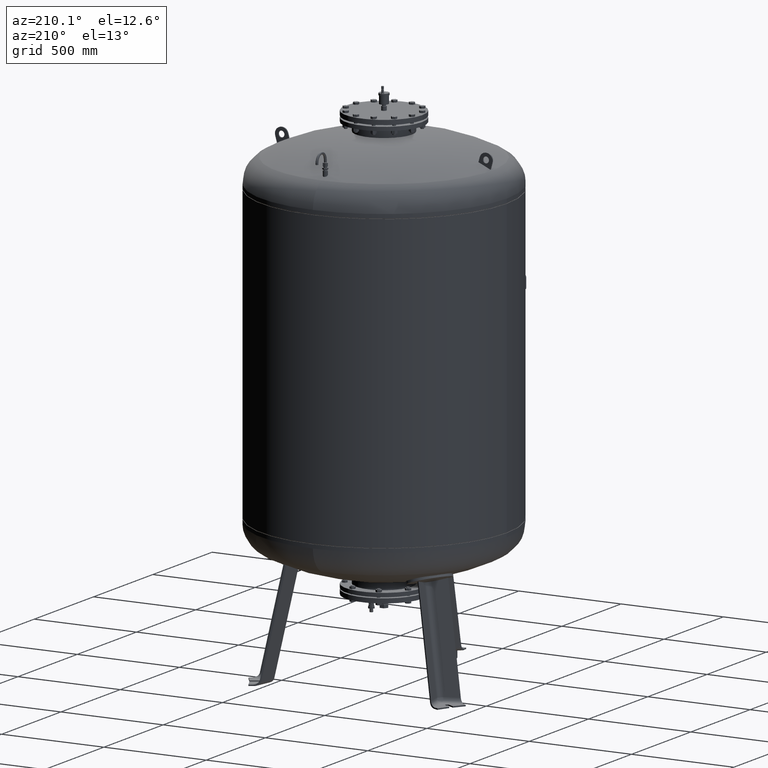
[diagram: clean part render]
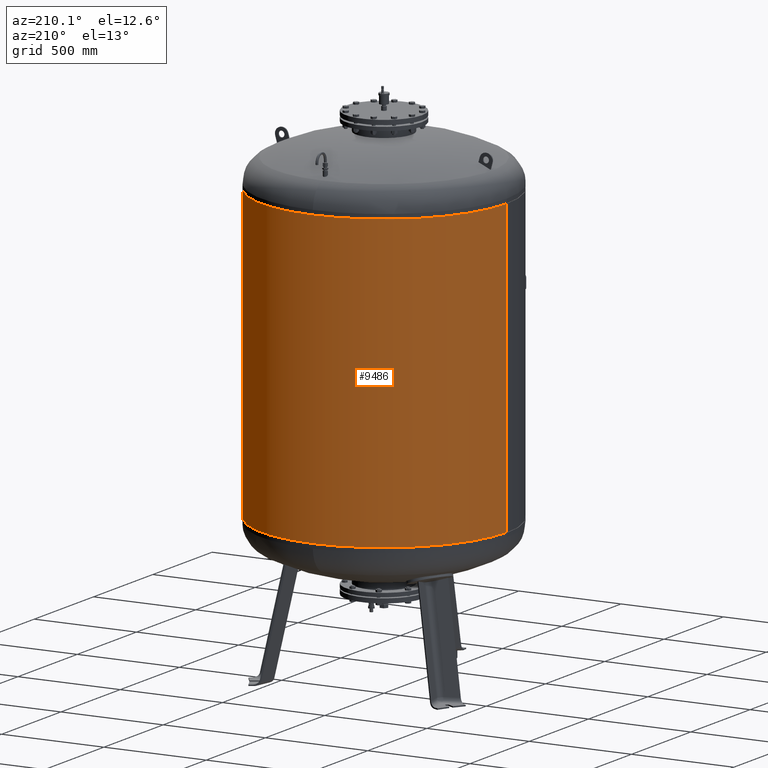
[diagram: same view with one face highlighted and labeled with its STEP entity id]
A machine part, auxiliary view. The second image highlights one B-rep face of the part: STEP entity #9486.
In plain terms, the highlighted cylindrical surface (partial cylindrical patch) has radius 600 mm, axis along (0, 0, 1).
Its self-contained STEP definition (entity closure, byte-faithful):
#9366=CARTESIAN_POINT('',(600.000000000000800,0.0,2142.0));
#9367=VERTEX_POINT('',#9366);
#9368=CARTESIAN_POINT('',(600.0,0.0,717.999999999999660));
#9369=VERTEX_POINT('',#9368);
#9370=CARTESIAN_POINT('',(600.000000000000800,0.0,2142.0));
#9371=DIRECTION('',(0.0,0.0,-1.0));
#9372=VECTOR('',#9371,1424.000000000000500);
#9373=LINE('',#9370,#9372);
#9374=EDGE_CURVE('',#9367,#9369,#9373,.T.);
#9376=CARTESIAN_POINT('',(-600.000000000000570,-7.347638E-014,2142.0));
#9377=VERTEX_POINT('',#9376);
#9385=CARTESIAN_POINT('',(-599.999999999999890,-7.347638E-014,717.999999999999660));
#9386=VERTEX_POINT('',#9385);
#9387=CARTESIAN_POINT('',(-600.000000000000570,-7.347638E-014,2142.0));
#9388=DIRECTION('',(0.0,0.0,-1.0));
#9389=VECTOR('',#9388,1424.000000000000500);
#9390=LINE('',#9387,#9389);
#9391=EDGE_CURVE('',#9377,#9386,#9390,.T.);
#9459=CARTESIAN_POINT('',(-1.661891E-014,0.0,717.999999999999550));
#9460=DIRECTION('',(0.0,0.0,1.0));
#9461=DIRECTION('',(1.0,0.0,0.0));
#9462=AXIS2_PLACEMENT_3D('',#9459,#9460,#9461);
#9463=CIRCLE('',#9462,600.0);
#9464=EDGE_CURVE('',#9369,#9386,#9463,.T.);
#9469=CARTESIAN_POINT('',(8.309455E-015,0.0,1781.0));
#9470=DIRECTION('',(2.301788E-017,0.0,1.0));
#9471=DIRECTION('',(1.0,0.0,0.0));
#9472=AXIS2_PLACEMENT_3D('',#9469,#9470,#9471);
#9473=CYLINDRICAL_SURFACE('',#9472,600.000000000000570);
#9474=ORIENTED_EDGE('',*,*,#9374,.T.);
#9475=ORIENTED_EDGE('',*,*,#9464,.T.);
#9476=ORIENTED_EDGE('',*,*,#9391,.F.);
#9477=CARTESIAN_POINT('',(1.661891E-014,0.0,2142.0));
#9478=DIRECTION('',(0.0,0.0,1.0));
#9479=DIRECTION('',(1.0,0.0,0.0));
#9480=AXIS2_PLACEMENT_3D('',#9477,#9478,#9479);
#9481=CIRCLE('',#9480,600.000000000000800);
#9482=EDGE_CURVE('',#9367,#9377,#9481,.T.);
#9483=ORIENTED_EDGE('',*,*,#9482,.F.);
#9484=EDGE_LOOP('',(#9474,#9475,#9476,#9483));
#9485=FACE_OUTER_BOUND('',#9484,.T.);
#9486=ADVANCED_FACE('',(#9485),#9473,.T.);